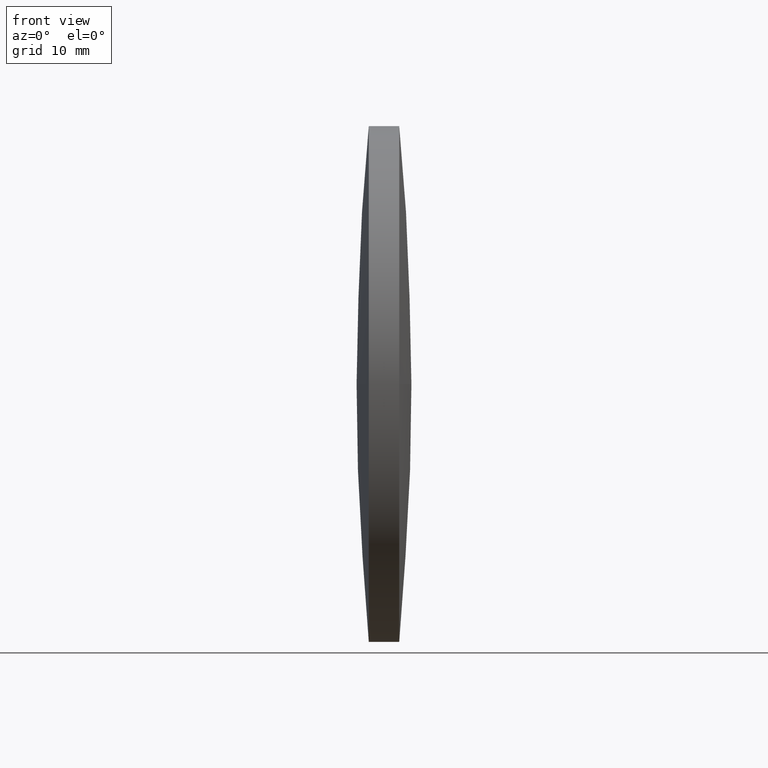
[diagram: clean part render]
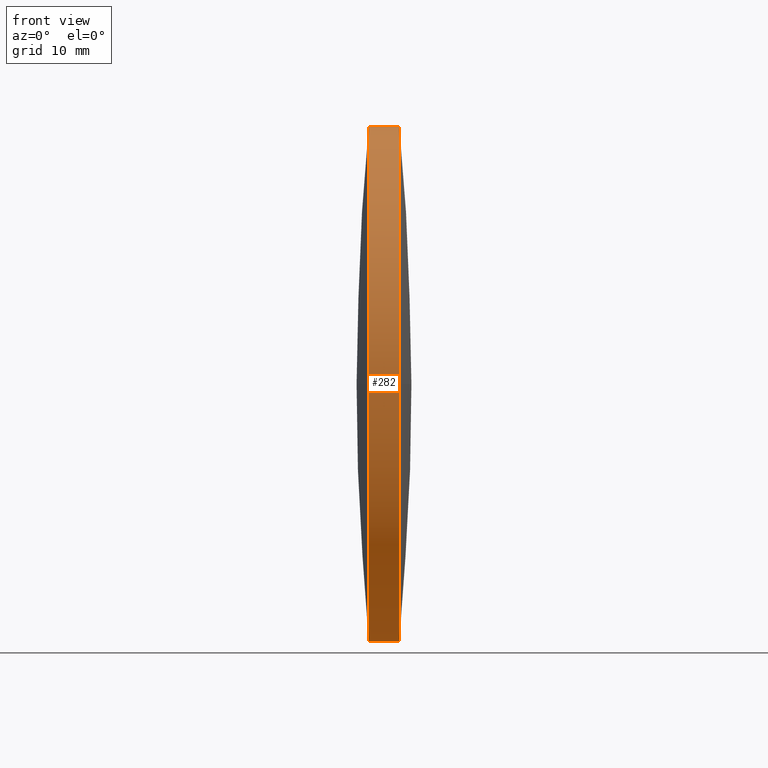
[diagram: same view with one face highlighted and labeled with its STEP entity id]
A machine part, front view. The second image highlights one B-rep face of the part: STEP entity #282.
In plain terms, the highlighted cylindrical surface (partial cylindrical patch) has radius 25.4 mm, axis along (-1, -0, -0).
Its self-contained STEP definition (entity closure, byte-faithful):
#6 = CIRCLE ( 'NONE', #234, 25.39999999999999100 ) ;
#15 = CARTESIAN_POINT ( 'NONE',  ( 171.4164086921822200, 97.23222604636956100, 0.0000000000000000000 ) ) ;
#24 = DIRECTION ( 'NONE',  ( -1.000000000000000000, -0.0000000000000000000, -0.0000000000000000000 ) ) ;
#35 = VERTEX_POINT ( 'NONE', #177 ) ;
#47 = AXIS2_PLACEMENT_3D ( 'NONE', #343, #101, #285 ) ;
#53 = CARTESIAN_POINT ( 'NONE',  ( 171.4164086921822200, 97.23222604636956100, 0.0000000000000000000 ) ) ;
#54 = VERTEX_POINT ( 'NONE', #145 ) ;
#56 = VERTEX_POINT ( 'NONE', #67 ) ;
#61 = AXIS2_PLACEMENT_3D ( 'NONE', #162, #319, #238 ) ;
#67 = CARTESIAN_POINT ( 'NONE',  ( 174.4163664064679400, 71.83222604636903000, -3.110602869834258700E-015 ) ) ;
#68 = AXIS2_PLACEMENT_3D ( 'NONE', #156, #233, #340 ) ;
#70 = FACE_OUTER_BOUND ( 'NONE', #232, .T. ) ;
#75 = CARTESIAN_POINT ( 'NONE',  ( 165.7441079421506900, 97.23222604636956100, 25.39999999999999100 ) ) ;
#78 = VECTOR ( 'NONE', #258, 1000.000000000000000 ) ;
#80 = EDGE_CURVE ( 'NONE', #225, #54, #303, .T. ) ;
#85 = CYLINDRICAL_SURFACE ( 'NONE', #61, 25.39999999999999100 ) ;
#101 = DIRECTION ( 'NONE',  ( -1.000000000000000000, -0.0000000000000000000, -0.0000000000000000000 ) ) ;
#103 = ORIENTED_EDGE ( 'NONE', *, *, #80, .F. ) ;
#127 = CARTESIAN_POINT ( 'NONE',  ( 174.4163664064679400, 97.23222604636956100, 25.39999999999999100 ) ) ;
#133 = CARTESIAN_POINT ( 'NONE',  ( 171.4164086921822200, 97.23222604636956100, -25.39999999999999100 ) ) ;
#145 = CARTESIAN_POINT ( 'NONE',  ( 171.4164086921822200, 71.83222604636910100, -3.110602869834266600E-015 ) ) ;
#148 = AXIS2_PLACEMENT_3D ( 'NONE', #15, #154, #206 ) ;
#154 = DIRECTION ( 'NONE',  ( -1.000000000000000000, -0.0000000000000000000, -0.0000000000000000000 ) ) ;
#156 = CARTESIAN_POINT ( 'NONE',  ( 174.4163664064679400, 97.23222604636956100, 0.0000000000000000000 ) ) ;
#157 = DIRECTION ( 'NONE',  ( 0.0000000000000000000, 0.0000000000000000000, 1.000000000000000000 ) ) ;
#162 = CARTESIAN_POINT ( 'NONE',  ( 165.7441079421506900, 97.23222604636956100, 0.0000000000000000000 ) ) ;
#172 = EDGE_CURVE ( 'NONE', #54, #213, #6, .T. ) ;
#177 = CARTESIAN_POINT ( 'NONE',  ( 174.4163664064679400, 97.23222604636956100, -25.39999999999999100 ) ) ;
#178 = CIRCLE ( 'NONE', #47, 25.39999999999999100 ) ;
#180 = ORIENTED_EDGE ( 'NONE', *, *, #172, .F. ) ;
#190 = EDGE_CURVE ( 'NONE', #35, #56, #228, .T. ) ;
#204 = ORIENTED_EDGE ( 'NONE', *, *, #273, .F. ) ;
#206 = DIRECTION ( 'NONE',  ( 0.0000000000000000000, 0.0000000000000000000, 1.000000000000000000 ) ) ;
#209 = CARTESIAN_POINT ( 'NONE',  ( 165.7441079421506900, 97.23222604636956100, -25.39999999999999100 ) ) ;
#210 = VECTOR ( 'NONE', #24, 1000.000000000000000 ) ;
#213 = VERTEX_POINT ( 'NONE', #230 ) ;
#225 = VERTEX_POINT ( 'NONE', #133 ) ;
#228 = CIRCLE ( 'NONE', #68, 25.39999999999999100 ) ;
#230 = CARTESIAN_POINT ( 'NONE',  ( 171.4164086921822200, 97.23222604636956100, 25.39999999999999100 ) ) ;
#232 = EDGE_LOOP ( 'NONE', ( #204, #292, #296, #345, #180, #103 ) ) ;
#233 = DIRECTION ( 'NONE',  ( -1.000000000000000000, -0.0000000000000000000, -0.0000000000000000000 ) ) ;
#234 = AXIS2_PLACEMENT_3D ( 'NONE', #53, #235, #157 ) ;
#235 = DIRECTION ( 'NONE',  ( -1.000000000000000000, -0.0000000000000000000, -0.0000000000000000000 ) ) ;
#238 = DIRECTION ( 'NONE',  ( 0.0000000000000000000, 0.0000000000000000000, 1.000000000000000000 ) ) ;
#239 = EDGE_CURVE ( 'NONE', #56, #251, #178, .T. ) ;
#242 = LINE ( 'NONE', #209, #210 ) ;
#251 = VERTEX_POINT ( 'NONE', #127 ) ;
#258 = DIRECTION ( 'NONE',  ( -1.000000000000000000, -0.0000000000000000000, -0.0000000000000000000 ) ) ;
#273 = EDGE_CURVE ( 'NONE', #35, #225, #242, .T. ) ;
#277 = EDGE_CURVE ( 'NONE', #251, #213, #283, .T. ) ;
#282 = ADVANCED_FACE ( 'NONE', ( #70 ), #85, .T. ) ;
#283 = LINE ( 'NONE', #75, #78 ) ;
#285 = DIRECTION ( 'NONE',  ( 0.0000000000000000000, 0.0000000000000000000, 1.000000000000000000 ) ) ;
#292 = ORIENTED_EDGE ( 'NONE', *, *, #190, .T. ) ;
#296 = ORIENTED_EDGE ( 'NONE', *, *, #239, .T. ) ;
#303 = CIRCLE ( 'NONE', #148, 25.39999999999999100 ) ;
#319 = DIRECTION ( 'NONE',  ( -1.000000000000000000, -0.0000000000000000000, -0.0000000000000000000 ) ) ;
#340 = DIRECTION ( 'NONE',  ( 0.0000000000000000000, 0.0000000000000000000, 1.000000000000000000 ) ) ;
#343 = CARTESIAN_POINT ( 'NONE',  ( 174.4163664064679400, 97.23222604636956100, 0.0000000000000000000 ) ) ;
#345 = ORIENTED_EDGE ( 'NONE', *, *, #277, .T. ) ;